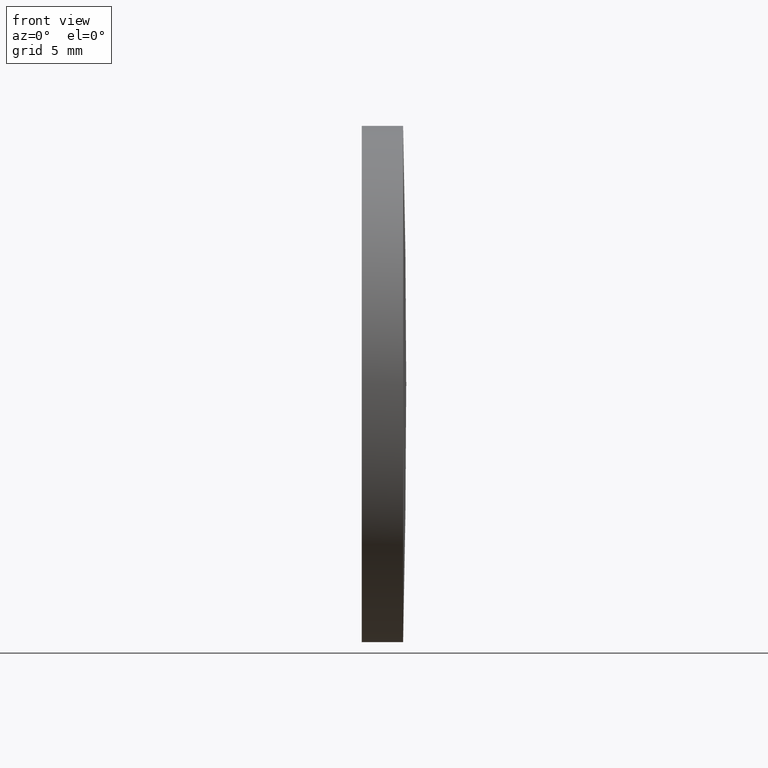
[diagram: clean part render]
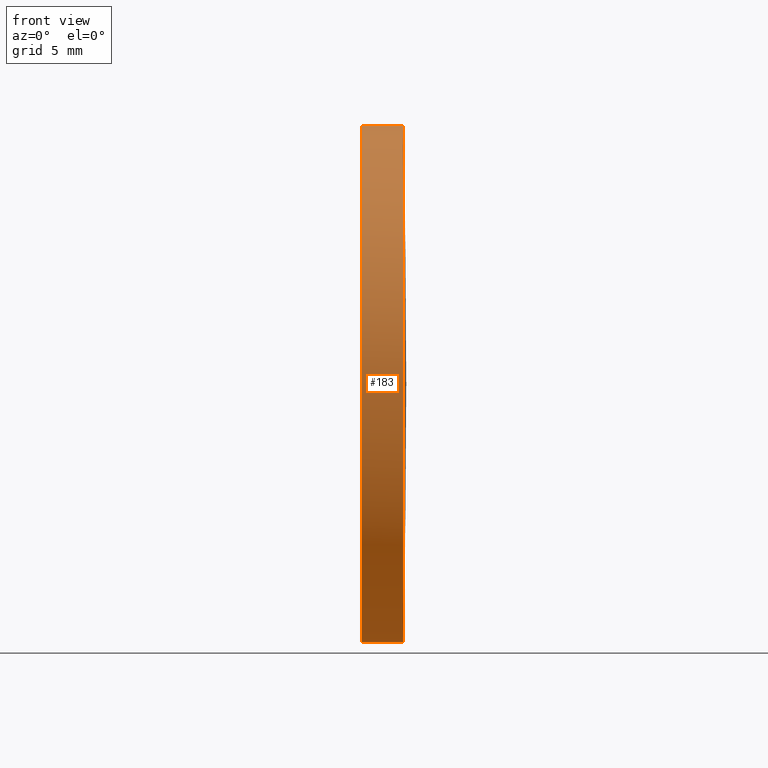
[diagram: same view with one face highlighted and labeled with its STEP entity id]
A machine part, front view. The second image highlights one B-rep face of the part: STEP entity #183.
In plain terms, the highlighted cylindrical surface (partial cylindrical patch) has radius 12.5 mm, axis along (-1, -0, -0).
Its self-contained STEP definition (entity closure, byte-faithful):
#5 = CARTESIAN_POINT ( 'NONE',  ( 421.8356969789069200, 122.3870715266886200, 12.49999999999999600 ) ) ;
#13 = EDGE_CURVE ( 'NONE', #83, #182, #105, .T. ) ;
#15 = DIRECTION ( 'NONE',  ( -1.000000000000000000, -0.0000000000000000000, -0.0000000000000000000 ) ) ;
#19 = CARTESIAN_POINT ( 'NONE',  ( 426.5777282207968100, 122.3870715266886200, 0.0000000000000000000 ) ) ;
#21 = DIRECTION ( 'NONE',  ( 0.0000000000000000000, 0.0000000000000000000, 1.000000000000000000 ) ) ;
#22 = EDGE_LOOP ( 'NONE', ( #56, #167, #84, #142, #124 ) ) ;
#23 = CYLINDRICAL_SURFACE ( 'NONE', #97, 12.49999999999999600 ) ;
#28 = DIRECTION ( 'NONE',  ( -1.000000000000000000, -0.0000000000000000000, -0.0000000000000000000 ) ) ;
#32 = AXIS2_PLACEMENT_3D ( 'NONE', #19, #148, #123 ) ;
#43 = CIRCLE ( 'NONE', #141, 12.49999999999999600 ) ;
#45 = EDGE_CURVE ( 'NONE', #81, #137, #85, .T. ) ;
#46 = CARTESIAN_POINT ( 'NONE',  ( 428.5777282207968100, 122.3870715266886200, 0.0000000000000000000 ) ) ;
#56 = ORIENTED_EDGE ( 'NONE', *, *, #45, .F. ) ;
#58 = CARTESIAN_POINT ( 'NONE',  ( 426.5777282207968100, 122.3870715266886200, -12.49999999999999600 ) ) ;
#64 = CARTESIAN_POINT ( 'NONE',  ( 426.5777282207968100, 122.3870715266886200, 12.49999999999999600 ) ) ;
#67 = EDGE_CURVE ( 'NONE', #181, #83, #68, .T. ) ;
#68 = CIRCLE ( 'NONE', #93, 12.49999999999999600 ) ;
#76 = CARTESIAN_POINT ( 'NONE',  ( 428.5777282207968100, 122.3870715266886200, -12.49999999999999600 ) ) ;
#79 = DIRECTION ( 'NONE',  ( 0.0000000000000000000, 0.0000000000000000000, 1.000000000000000000 ) ) ;
#81 = VERTEX_POINT ( 'NONE', #76 ) ;
#83 = VERTEX_POINT ( 'NONE', #174 ) ;
#84 = ORIENTED_EDGE ( 'NONE', *, *, #67, .T. ) ;
#85 = LINE ( 'NONE', #131, #185 ) ;
#93 = AXIS2_PLACEMENT_3D ( 'NONE', #46, #171, #118 ) ;
#97 = AXIS2_PLACEMENT_3D ( 'NONE', #164, #106, #79 ) ;
#105 = LINE ( 'NONE', #5, #108 ) ;
#106 = DIRECTION ( 'NONE',  ( -1.000000000000000000, -0.0000000000000000000, -0.0000000000000000000 ) ) ;
#108 = VECTOR ( 'NONE', #28, 1000.000000000000000 ) ;
#112 = CIRCLE ( 'NONE', #32, 12.49999999999999600 ) ;
#118 = DIRECTION ( 'NONE',  ( 0.0000000000000000000, 0.0000000000000000000, 1.000000000000000000 ) ) ;
#119 = CARTESIAN_POINT ( 'NONE',  ( 428.5777282207968700, 109.8870715266857000, -1.530808498934227000E-015 ) ) ;
#123 = DIRECTION ( 'NONE',  ( 0.0000000000000000000, 0.0000000000000000000, 1.000000000000000000 ) ) ;
#124 = ORIENTED_EDGE ( 'NONE', *, *, #184, .F. ) ;
#131 = CARTESIAN_POINT ( 'NONE',  ( 421.8356969789069200, 122.3870715266886200, -12.49999999999999600 ) ) ;
#132 = CARTESIAN_POINT ( 'NONE',  ( 428.5777282207968100, 122.3870715266886200, 0.0000000000000000000 ) ) ;
#137 = VERTEX_POINT ( 'NONE', #58 ) ;
#141 = AXIS2_PLACEMENT_3D ( 'NONE', #132, #150, #21 ) ;
#142 = ORIENTED_EDGE ( 'NONE', *, *, #13, .T. ) ;
#147 = EDGE_CURVE ( 'NONE', #81, #181, #43, .T. ) ;
#148 = DIRECTION ( 'NONE',  ( -1.000000000000000000, -0.0000000000000000000, -0.0000000000000000000 ) ) ;
#150 = DIRECTION ( 'NONE',  ( -1.000000000000000000, -0.0000000000000000000, -0.0000000000000000000 ) ) ;
#154 = FACE_OUTER_BOUND ( 'NONE', #22, .T. ) ;
#164 = CARTESIAN_POINT ( 'NONE',  ( 421.8356969789069200, 122.3870715266886200, 0.0000000000000000000 ) ) ;
#167 = ORIENTED_EDGE ( 'NONE', *, *, #147, .T. ) ;
#171 = DIRECTION ( 'NONE',  ( -1.000000000000000000, -0.0000000000000000000, -0.0000000000000000000 ) ) ;
#174 = CARTESIAN_POINT ( 'NONE',  ( 428.5777282207968100, 122.3870715266886200, 12.49999999999999600 ) ) ;
#181 = VERTEX_POINT ( 'NONE', #119 ) ;
#182 = VERTEX_POINT ( 'NONE', #64 ) ;
#183 = ADVANCED_FACE ( 'NONE', ( #154 ), #23, .T. ) ;
#184 = EDGE_CURVE ( 'NONE', #137, #182, #112, .T. ) ;
#185 = VECTOR ( 'NONE', #15, 1000.000000000000000 ) ;